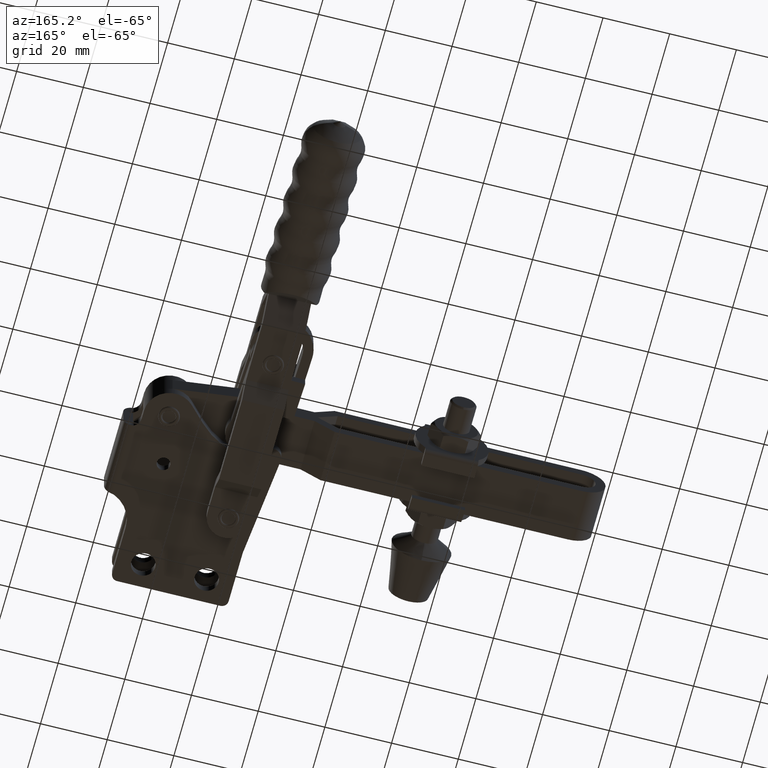
[diagram: clean part render]
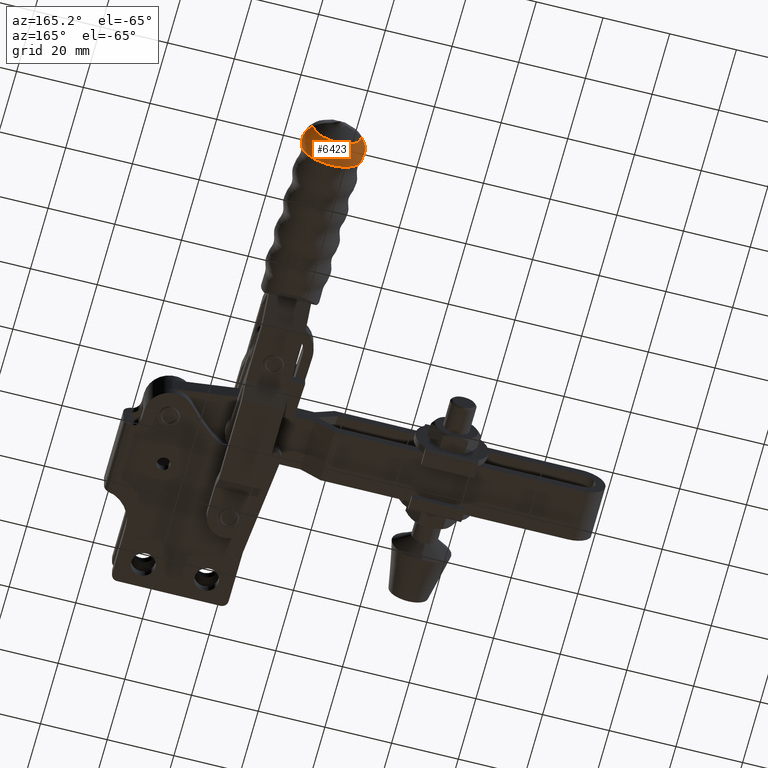
[diagram: same view with one face highlighted and labeled with its STEP entity id]
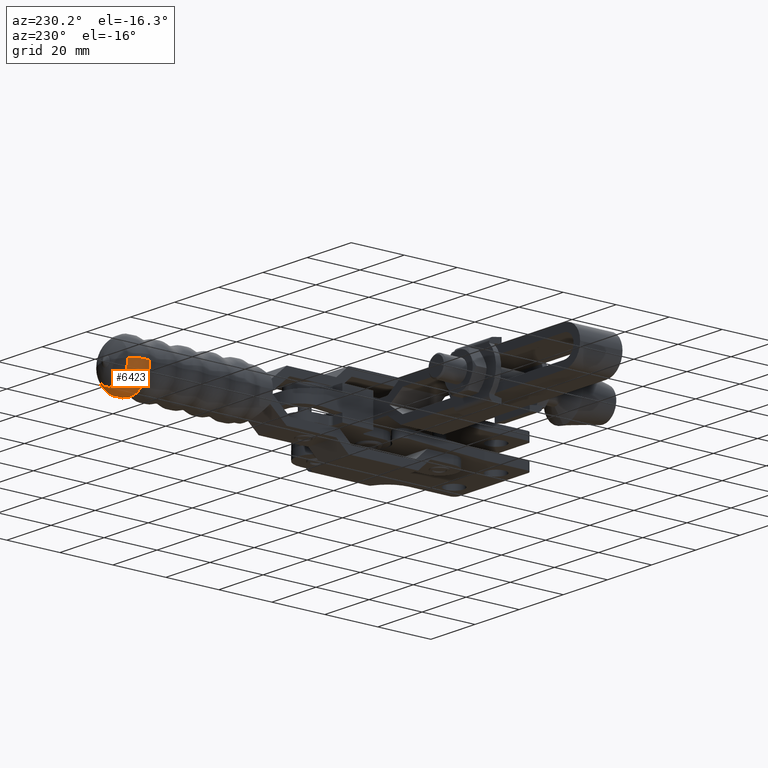
[diagram: same view with one face highlighted and labeled with its STEP entity id]
A machine part, auxiliary view. The second image highlights one B-rep face of the part: STEP entity #6423.
A second angle (auxiliary view) of the same face is appended — the face is thin or edge-on in the first view.
In plain terms, the highlighted toroidal blend (fillet) surface has major radius 3.4089 mm and minor (blend) radius 6 mm.
Its self-contained STEP definition (entity closure, byte-faithful):
#146 = DIRECTION ( 'NONE',  ( -1.017833934423036900E-016, 1.000000000000000000, -0.0000000000000000000 ) ) ;
#825 = AXIS2_PLACEMENT_3D ( 'NONE', #7899, #2144, #8878 ) ;
#870 = ORIENTED_EDGE ( 'NONE', *, *, #11144, .F. ) ;
#1022 = FACE_OUTER_BOUND ( 'NONE', #2853, .T. ) ;
#1399 = AXIS2_PLACEMENT_3D ( 'NONE', #5326, #12022, #6260 ) ;
#2064 = CARTESIAN_POINT ( 'NONE',  ( -27.76727212735076500, 130.8812684000771500, -0.09999999999998834800 ) ) ;
#2144 = DIRECTION ( 'NONE',  ( -1.224646799147353200E-016, -1.246487069854729000E-032, 1.000000000000000000 ) ) ;
#2513 = EDGE_CURVE ( 'NONE', #6221, #11111, #9841, .T. ) ;
#2853 = EDGE_LOOP ( 'NONE', ( #9686, #9046, #5191, #870 ) ) ;
#3062 = AXIS2_PLACEMENT_3D ( 'NONE', #5447, #10298, #4532 ) ;
#4532 = DIRECTION ( 'NONE',  ( -1.000000000000000000, -1.017833934423036900E-016, 0.0000000000000000000 ) ) ;
#5177 = CARTESIAN_POINT ( 'NONE',  ( -40.20890345317069900, 132.9723444146859200, -0.09999999999998945800 ) ) ;
#5191 = ORIENTED_EDGE ( 'NONE', *, *, #5814, .T. ) ;
#5326 = CARTESIAN_POINT ( 'NONE',  ( -36.80000000000024600, 137.6197561475800600, -0.09999999999998945800 ) ) ;
#5331 = AXIS2_PLACEMENT_3D ( 'NONE', #5870, #146, #6828 ) ;
#5447 = CARTESIAN_POINT ( 'NONE',  ( -36.80000000000024600, 132.9723444146859200, -0.09999999999998945800 ) ) ;
#5452 = VERTEX_POINT ( 'NONE', #5745 ) ;
#5745 = CARTESIAN_POINT ( 'NONE',  ( -44.00384273924082400, 137.6197561475800600, -0.09999999999999034700 ) ) ;
#5814 = EDGE_CURVE ( 'NONE', #11111, #5452, #11556, .T. ) ;
#5870 = CARTESIAN_POINT ( 'NONE',  ( -36.80000000000024600, 130.8812684000771500, -0.09999999999998945800 ) ) ;
#6115 = DIRECTION ( 'NONE',  ( -1.000000000000000000, 0.0000000000000000000, 0.0000000000000000000 ) ) ;
#6221 = VERTEX_POINT ( 'NONE', #2064 ) ;
#6260 = DIRECTION ( 'NONE',  ( -1.000000000000000000, 0.0000000000000000000, 0.0000000000000000000 ) ) ;
#6423 = ADVANCED_FACE ( 'NONE', ( #1022 ), #7785, .T. ) ;
#6828 = DIRECTION ( 'NONE',  ( -1.000000000000000000, 0.0000000000000000000, 0.0000000000000000000 ) ) ;
#7205 = CARTESIAN_POINT ( 'NONE',  ( -45.83272787264973400, 130.8812684000771500, -0.09999999999998945800 ) ) ;
#7749 = CIRCLE ( 'NONE', #825, 6.000000000000067500 ) ;
#7785 = TOROIDAL_SURFACE ( 'NONE', #3062, 3.408903453170448300, 6.000000000000069300 ) ;
#7899 = CARTESIAN_POINT ( 'NONE',  ( -33.39109654682980000, 132.9723444146859200, -0.09999999999998904200 ) ) ;
#8240 = CARTESIAN_POINT ( 'NONE',  ( -29.59615726075967500, 137.6197561475800600, -0.09999999999998945800 ) ) ;
#8541 = AXIS2_PLACEMENT_3D ( 'NONE', #5177, #11873, #6115 ) ;
#8721 = EDGE_CURVE ( 'NONE', #6221, #9954, #7749, .T. ) ;
#8878 = DIRECTION ( 'NONE',  ( 1.000000000000000000, 0.0000000000000000000, 1.219727444046178700E-016 ) ) ;
#8941 = CIRCLE ( 'NONE', #1399, 7.203842739240573500 ) ;
#9046 = ORIENTED_EDGE ( 'NONE', *, *, #2513, .T. ) ;
#9686 = ORIENTED_EDGE ( 'NONE', *, *, #8721, .F. ) ;
#9841 = CIRCLE ( 'NONE', #5331, 9.032727872649484600 ) ;
#9954 = VERTEX_POINT ( 'NONE', #8240 ) ;
#10298 = DIRECTION ( 'NONE',  ( -1.017833934423036900E-016, 1.000000000000000000, -0.0000000000000000000 ) ) ;
#11111 = VERTEX_POINT ( 'NONE', #7205 ) ;
#11144 = EDGE_CURVE ( 'NONE', #9954, #5452, #8941, .T. ) ;
#11556 = CIRCLE ( 'NONE', #8541, 6.000000000000067500 ) ;
#11873 = DIRECTION ( 'NONE',  ( 0.0000000000000000000, -0.0000000000000000000, -1.000000000000000000 ) ) ;
#12022 = DIRECTION ( 'NONE',  ( -1.017833934423036900E-016, 1.000000000000000000, -0.0000000000000000000 ) ) ;